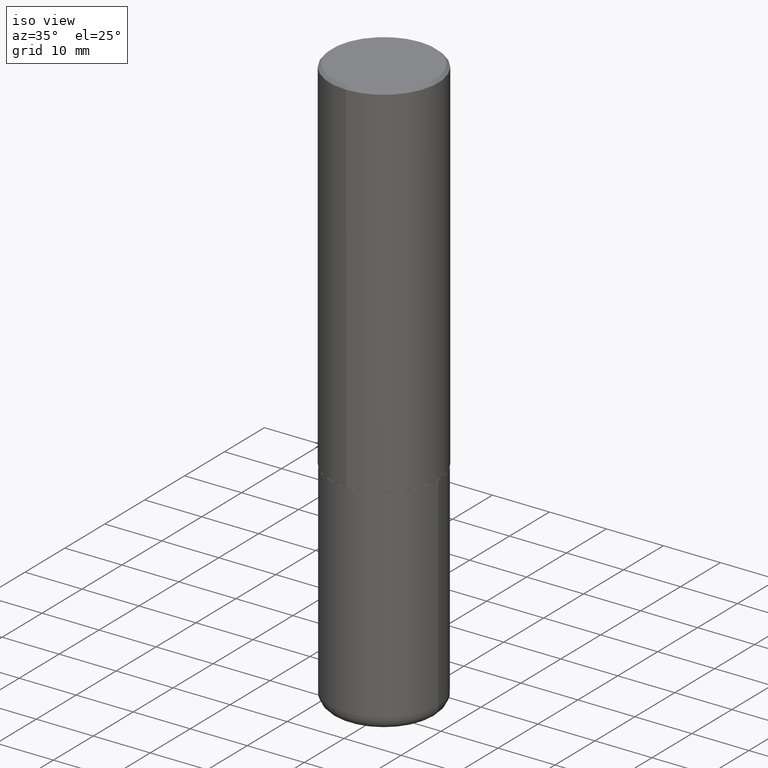
[diagram: clean part render]
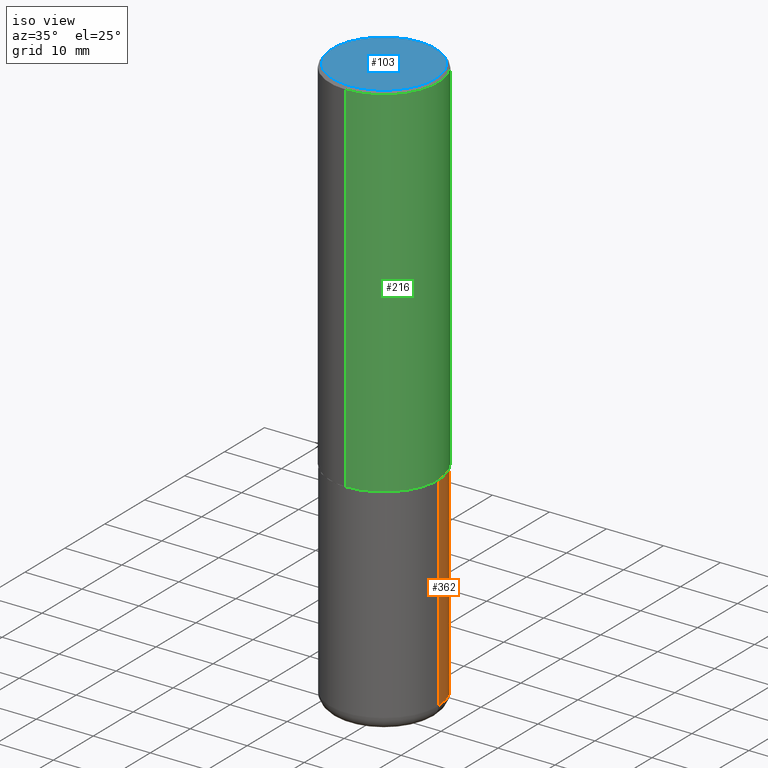
[diagram: same view with three faces highlighted in distinct colors, each labeled with its STEP entity id]
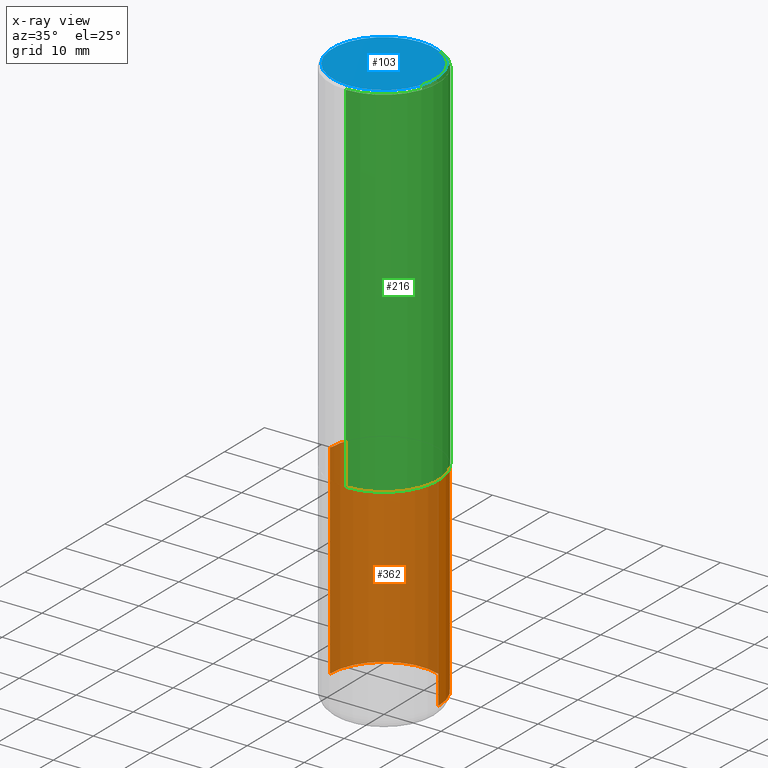
[diagram: x-ray of the same camera — body ghosted, the three highlighted faces saturated]
A machine part, iso view with three faces highlighted in distinct colors.
The next image is the same camera in x-ray (body ghosted, the three faces saturated) — at least one of them is partly hidden behind the body in this view.
Their STEP definitions:

[orange] entity #362 — the highlighted cylindrical surface (partial cylindrical patch) has radius 9.525 mm, axis along (-0, 0, 1).
#12 = CARTESIAN_POINT ( 'NONE',  ( 0.3749999999999999445, -2.618611004132349622E-15, 1.828566290923475642E-29 ) ) ;
#15 = CARTESIAN_POINT ( 'NONE',  ( 6.113672015462840371E-29, -8.728703347107863365E-15, -2.499999999999999556 ) ) ;
#17 = DIRECTION ( 'NONE',  ( -2.445468806185136597E-29, 3.491481338843145583E-15, 1.000000000000000000 ) ) ;
#29 = AXIS2_PLACEMENT_3D ( 'NONE', #15, #17, #150 ) ;
#36 = VECTOR ( 'NONE', #70, 39.37007874015748143 ) ;
#52 = CARTESIAN_POINT ( 'NONE',  ( -0.3750000000000000555, -8.525662431891907096E-15, -2.499999999999999556 ) ) ;
#53 = ORIENTED_EDGE ( 'NONE', *, *, #176, .F. ) ;
#54 = ORIENTED_EDGE ( 'NONE', *, *, #246, .F. ) ;
#60 = DIRECTION ( 'NONE',  ( 1.000000000000000000, -6.982962677686266711E-15, 4.876176775795935793E-29 ) ) ;
#61 = CIRCLE ( 'NONE', #306, 0.3749999999999999445 ) ;
#69 = EDGE_CURVE ( 'NONE', #332, #347, #202, .T. ) ;
#70 = DIRECTION ( 'NONE',  ( -2.445468806185136877E-29, 3.491481338843145188E-15, 1.000000000000000000 ) ) ;
#89 = EDGE_LOOP ( 'NONE', ( #377, #151, #54, #53 ) ) ;
#104 = CARTESIAN_POINT ( 'NONE',  ( 0.3750000000000000555, -1.134731435124021180E-14, -2.499999999999999556 ) ) ;
#109 = EDGE_CURVE ( 'NONE', #148, #332, #61, .T. ) ;
#148 = VERTEX_POINT ( 'NONE', #205 ) ;
#150 = DIRECTION ( 'NONE',  ( 1.000000000000000000, -6.982962677686264344E-15, 0.000000000000000000 ) ) ;
#151 = ORIENTED_EDGE ( 'NONE', *, *, #69, .T. ) ;
#154 = VERTEX_POINT ( 'NONE', #104 ) ;
#156 = CYLINDRICAL_SURFACE ( 'NONE', #301, 0.3749999999999999445 ) ;
#176 = EDGE_CURVE ( 'NONE', #148, #154, #396, .T. ) ;
#192 = DIRECTION ( 'NONE',  ( -2.445468806185136597E-29, 3.491481338843145583E-15, 1.000000000000000000 ) ) ;
#202 = LINE ( 'NONE', #329, #36 ) ;
#204 = CARTESIAN_POINT ( 'NONE',  ( 9.561783032183883600E-29, -1.365169203487670064E-14, -3.910000000000000142 ) ) ;
#205 = CARTESIAN_POINT ( 'NONE',  ( 0.3749999999999999445, -1.627030303900904751E-14, -3.910000000000000142 ) ) ;
#206 = DIRECTION ( 'NONE',  ( -2.445468806185136877E-29, 3.491481338843145188E-15, 1.000000000000000000 ) ) ;
#246 = EDGE_CURVE ( 'NONE', #154, #347, #366, .T. ) ;
#267 = VECTOR ( 'NONE', #206, 39.37007874015748143 ) ;
#285 = CARTESIAN_POINT ( 'NONE',  ( 0.000000000000000000, 0.000000000000000000, 0.000000000000000000 ) ) ;
#296 = DIRECTION ( 'NONE',  ( 1.000000000000000000, -6.982962677686263555E-15, 0.000000000000000000 ) ) ;
#301 = AXIS2_PLACEMENT_3D ( 'NONE', #285, #340, #60 ) ;
#306 = AXIS2_PLACEMENT_3D ( 'NONE', #204, #192, #296 ) ;
#316 = CARTESIAN_POINT ( 'NONE',  ( -0.3749999999999999445, -1.098715677577632652E-14, -3.910000000000000142 ) ) ;
#319 = FACE_OUTER_BOUND ( 'NONE', #89, .T. ) ;
#329 = CARTESIAN_POINT ( 'NONE',  ( -0.3749999999999999445, 2.664535259100375303E-15, -1.844600658845589318E-29 ) ) ;
#332 = VERTEX_POINT ( 'NONE', #316 ) ;
#340 = DIRECTION ( 'NONE',  ( -2.445468806185136597E-29, 3.491481338843145583E-15, 1.000000000000000000 ) ) ;
#347 = VERTEX_POINT ( 'NONE', #52 ) ;
#362 = ADVANCED_FACE ( 'NONE', ( #319 ), #156, .T. ) ;
#366 = CIRCLE ( 'NONE', #29, 0.3750000000000000555 ) ;
#377 = ORIENTED_EDGE ( 'NONE', *, *, #109, .T. ) ;
#396 = LINE ( 'NONE', #12, #267 ) ;

[blue] entity #103 — the highlighted planar face has unit normal (0, -0, -1).
#1 = CARTESIAN_POINT ( 'NONE',  ( 2.548781377355486718E-15, 0.3549999999999997602, -1.008976200823893402E-15 ) ) ;
#2 = ORIENTED_EDGE ( 'NONE', *, *, #330, .T. ) ;
#21 = AXIS2_PLACEMENT_3D ( 'NONE', #368, #110, #24 ) ;
#24 = DIRECTION ( 'NONE',  ( -6.982962677686266711E-15, -1.000000000000000000, 3.493017854714052220E-15 ) ) ;
#30 = CARTESIAN_POINT ( 'NONE',  ( 2.478951750578623026E-15, 0.3549999999999997602, -1.124498769623690920E-15 ) ) ;
#46 = CARTESIAN_POINT ( 'NONE',  ( -5.647657784886327300E-45, 8.070447908802484547E-31, 2.310451375995943946E-16 ) ) ;
#95 = FACE_OUTER_BOUND ( 'NONE', #284, .T. ) ;
#103 = ADVANCED_FACE ( 'NONE', ( #95 ), #290, .F. ) ;
#110 = DIRECTION ( 'NONE',  ( -2.444395862887114472E-29, 3.493017854714053009E-15, 1.000000000000000000 ) ) ;
#159 = DIRECTION ( 'NONE',  ( 2.444395862887114472E-29, -3.493017854714053009E-15, -1.000000000000000000 ) ) ;
#211 = DIRECTION ( 'NONE',  ( -6.982962677686266711E-15, -1.000000000000000000, 3.493017854714052220E-15 ) ) ;
#232 = EDGE_CURVE ( 'NONE', #380, #400, #275, .T. ) ;
#243 = AXIS2_PLACEMENT_3D ( 'NONE', #30, #159, #323 ) ;
#245 = CIRCLE ( 'NONE', #21, 0.3549999999999997602 ) ;
#248 = ORIENTED_EDGE ( 'NONE', *, *, #232, .T. ) ;
#256 = AXIS2_PLACEMENT_3D ( 'NONE', #46, #314, #211 ) ;
#275 = CIRCLE ( 'NONE', #256, 0.3549999999999997602 ) ;
#284 = EDGE_LOOP ( 'NONE', ( #2, #248 ) ) ;
#290 = PLANE ( 'NONE',  #243 ) ;
#314 = DIRECTION ( 'NONE',  ( -2.444395862887114472E-29, 3.493017854714053009E-15, 1.000000000000000000 ) ) ;
#323 = DIRECTION ( 'NONE',  ( 6.982962677686265922E-15, 1.000000000000000000, -3.493017854714053009E-15 ) ) ;
#326 = CARTESIAN_POINT ( 'NONE',  ( -2.504081769186607821E-15, -0.3549999999999997602, 1.471066476023082684E-15 ) ) ;
#330 = EDGE_CURVE ( 'NONE', #400, #380, #245, .T. ) ;
#368 = CARTESIAN_POINT ( 'NONE',  ( -5.647657784886327300E-45, 8.070447908802484547E-31, 2.310451375995943946E-16 ) ) ;
#380 = VERTEX_POINT ( 'NONE', #326 ) ;
#400 = VERTEX_POINT ( 'NONE', #1 ) ;

[green] entity #216 — the highlighted cylindrical surface (partial cylindrical patch) has radius 9.525 mm, axis along (-0, 0, 1).
#5 = CIRCLE ( 'NONE', #203, 0.3750000000000002776 ) ;
#43 = EDGE_CURVE ( 'NONE', #117, #185, #383, .T. ) ;
#62 = VECTOR ( 'NONE', #184, 39.37007874015748143 ) ;
#78 = DIRECTION ( 'NONE',  ( -6.982962677686266711E-15, -1.000000000000000000, 2.913971193241878794E-15 ) ) ;
#80 = DIRECTION ( 'NONE',  ( -2.444395862887114472E-29, 3.493017854714053009E-15, 1.000000000000000000 ) ) ;
#86 = AXIS2_PLACEMENT_3D ( 'NONE', #226, #197, #355 ) ;
#117 = VERTEX_POINT ( 'NONE', #416 ) ;
#131 = EDGE_CURVE ( 'NONE', #183, #185, #174, .T. ) ;
#147 = CARTESIAN_POINT ( 'NONE',  ( -2.618611004132351200E-15, -0.3750000000000001665, 1.309881695517770421E-15 ) ) ;
#149 = ORIENTED_EDGE ( 'NONE', *, *, #43, .T. ) ;
#168 = DIRECTION ( 'NONE',  ( -2.444395862887114192E-29, 3.493017854714053009E-15, 1.000000000000000000 ) ) ;
#173 = FACE_OUTER_BOUND ( 'NONE', #321, .T. ) ;
#174 = CIRCLE ( 'NONE', #86, 0.3750000000000000555 ) ;
#183 = VERTEX_POINT ( 'NONE', #235 ) ;
#184 = DIRECTION ( 'NONE',  ( -2.444395862887114192E-29, 3.493017854714053009E-15, 1.000000000000000000 ) ) ;
#185 = VERTEX_POINT ( 'NONE', #209 ) ;
#194 = AXIS2_PLACEMENT_3D ( 'NONE', #283, #411, #374 ) ;
#197 = DIRECTION ( 'NONE',  ( -2.444395862887114472E-29, 3.493017854714053009E-15, 1.000000000000000000 ) ) ;
#203 = AXIS2_PLACEMENT_3D ( 'NONE', #378, #80, #78 ) ;
#209 = CARTESIAN_POINT ( 'NONE',  ( 2.618611004132350411E-15, 0.3749999999999999445, -0.02000000000000139513 ) ) ;
#216 = ADVANCED_FACE ( 'NONE', ( #173 ), #276, .T. ) ;
#219 = ORIENTED_EDGE ( 'NONE', *, *, #312, .T. ) ;
#226 = CARTESIAN_POINT ( 'NONE',  ( 4.888791725774251015E-31, -6.986035709428135453E-17, -0.02000000000000008715 ) ) ;
#235 = CARTESIAN_POINT ( 'NONE',  ( -2.572686749164323547E-15, -0.3750000000000001110, -0.01999999999999877570 ) ) ;
#272 = EDGE_CURVE ( 'NONE', #369, #183, #344, .T. ) ;
#276 = CYLINDRICAL_SURFACE ( 'NONE', #194, 0.3750000000000001665 ) ;
#283 = CARTESIAN_POINT ( 'NONE',  ( 0.000000000000000000, 0.000000000000000000, 0.000000000000000000 ) ) ;
#303 = ORIENTED_EDGE ( 'NONE', *, *, #272, .F. ) ;
#312 = EDGE_CURVE ( 'NONE', #369, #117, #5, .T. ) ;
#321 = EDGE_LOOP ( 'NONE', ( #219, #149, #385, #303 ) ) ;
#344 = LINE ( 'NONE', #147, #62 ) ;
#355 = DIRECTION ( 'NONE',  ( -6.982962677686265922E-15, -1.000000000000000000, 3.494488891895536035E-15 ) ) ;
#358 = CARTESIAN_POINT ( 'NONE',  ( -2.618611004132290852E-15, -0.3750000000000090483, -2.498999999999998778 ) ) ;
#359 = CARTESIAN_POINT ( 'NONE',  ( 2.664535259100376486E-15, 0.3750000000000001665, -1.309881695517770421E-15 ) ) ;
#369 = VERTEX_POINT ( 'NONE', #358 ) ;
#371 = VECTOR ( 'NONE', #168, 39.37007874015748143 ) ;
#374 = DIRECTION ( 'NONE',  ( -6.982962677686266711E-15, -1.000000000000000000, 3.493017854714053009E-15 ) ) ;
#378 = CARTESIAN_POINT ( 'NONE',  ( 6.108545261354898806E-29, -8.729051618930418030E-15, -2.498999999999999666 ) ) ;
#383 = LINE ( 'NONE', #359, #371 ) ;
#385 = ORIENTED_EDGE ( 'NONE', *, *, #131, .F. ) ;
#411 = DIRECTION ( 'NONE',  ( -2.444395862887114472E-29, 3.493017854714053009E-15, 1.000000000000000000 ) ) ;
#416 = CARTESIAN_POINT ( 'NONE',  ( 2.664535259100408040E-15, 0.3749999999999915623, -2.499000000000000998 ) ) ;